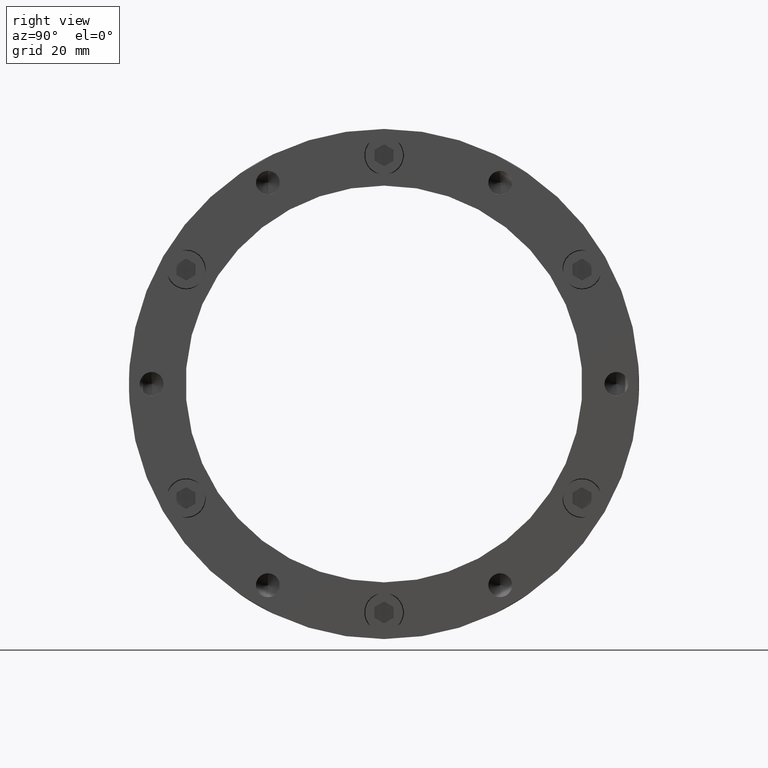
[diagram: clean part render]
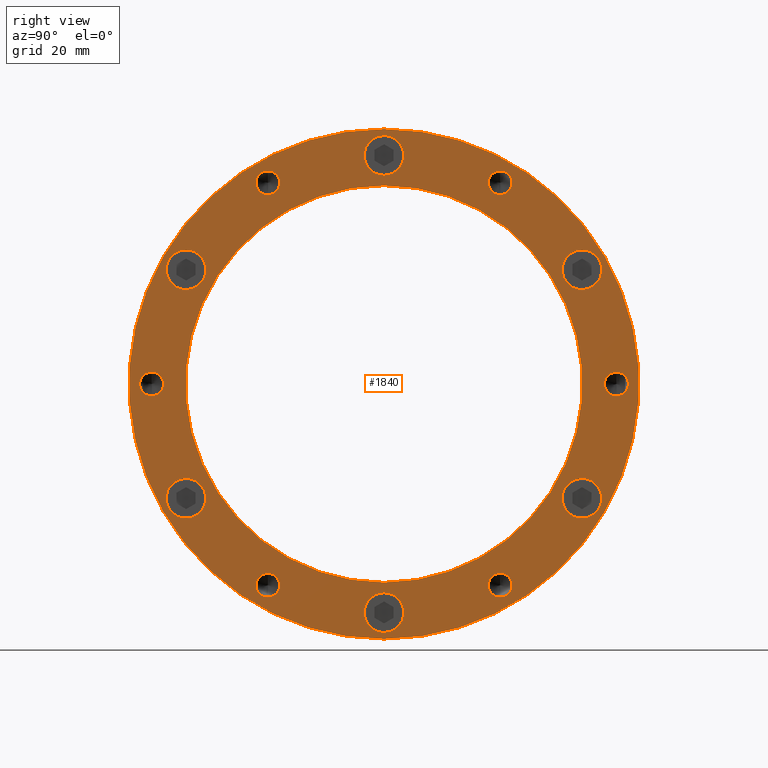
[diagram: same view with one face highlighted and labeled with its STEP entity id]
A machine part, right view. The second image highlights one B-rep face of the part: STEP entity #1840.
In plain terms, the highlighted planar face has unit normal (1, 0, 0).
Its self-contained STEP definition (entity closure, byte-faithful):
#33 = EDGE_LOOP ( 'NONE', ( #2429, #2441 ) ) ;
#34 = EDGE_LOOP ( 'NONE', ( #2354, #2428 ) ) ;
#35 = EDGE_LOOP ( 'NONE', ( #2458, #2459 ) ) ;
#37 = EDGE_LOOP ( 'NONE', ( #2447, #2450 ) ) ;
#38 = EDGE_LOOP ( 'NONE', ( #2381, #2431 ) ) ;
#39 = EDGE_LOOP ( 'NONE', ( #2462, #2463 ) ) ;
#40 = EDGE_LOOP ( 'NONE', ( #2464, #2461 ) ) ;
#41 = EDGE_LOOP ( 'NONE', ( #2466, #2465 ) ) ;
#42 = EDGE_LOOP ( 'NONE', ( #2476, #2475 ) ) ;
#43 = EDGE_LOOP ( 'NONE', ( #2474, #2467 ) ) ;
#44 = EDGE_LOOP ( 'NONE', ( #2472, #2471 ) ) ;
#45 = EDGE_LOOP ( 'NONE', ( #2468, #2477 ) ) ;
#48 = EDGE_LOOP ( 'NONE', ( #2470, #2460 ) ) ;
#51 = EDGE_LOOP ( 'NONE', ( #2478, #2469 ) ) ;
#322 = CIRCLE ( 'NONE', #490, 5.250000000000004400 ) ;
#328 = CIRCLE ( 'NONE', #492, 5.250000000000004400 ) ;
#332 = CIRCLE ( 'NONE', #495, 5.250000000000000900 ) ;
#346 = CIRCLE ( 'NONE', #498, 5.250000000000000900 ) ;
#351 = CIRCLE ( 'NONE', #500, 3.149999999999999900 ) ;
#357 = CIRCLE ( 'NONE', #503, 52.50000000000000000 ) ;
#477 = AXIS2_PLACEMENT_3D ( 'NONE', #3973, #3974, #3975 ) ;
#480 = AXIS2_PLACEMENT_3D ( 'NONE', #3957, #3958, #3959 ) ;
#483 = AXIS2_PLACEMENT_3D ( 'NONE', #3938, #3939, #3940 ) ;
#490 = AXIS2_PLACEMENT_3D ( 'NONE', #3906, #3907, #3908 ) ;
#492 = AXIS2_PLACEMENT_3D ( 'NONE', #3896, #3897, #3898 ) ;
#495 = AXIS2_PLACEMENT_3D ( 'NONE', #3882, #3883, #3884 ) ;
#498 = AXIS2_PLACEMENT_3D ( 'NONE', #3865, #3866, #3867 ) ;
#500 = AXIS2_PLACEMENT_3D ( 'NONE', #731, #3856, #3857 ) ;
#503 = AXIS2_PLACEMENT_3D ( 'NONE', #3842, #3843, #3844 ) ;
#508 = AXIS2_PLACEMENT_3D ( 'NONE', #3816, #3817, #3818 ) ;
#573 = EDGE_CURVE ( 'NONE', #1987, #1988, #1234, .T. ) ;
#579 = EDGE_CURVE ( 'NONE', #1979, #1980, #1230, .T. ) ;
#581 = EDGE_CURVE ( 'NONE', #1983, #1984, #1229, .T. ) ;
#590 = EDGE_CURVE ( 'NONE', #2002, #2003, #1224, .T. ) ;
#592 = EDGE_CURVE ( 'NONE', #1999, #2000, #1223, .T. ) ;
#593 = EDGE_CURVE ( 'NONE', #1995, #1996, #1222, .T. ) ;
#597 = EDGE_CURVE ( 'NONE', #1991, #1992, #1220, .T. ) ;
#614 = EDGE_CURVE ( 'NONE', #1975, #1976, #1206, .T. ) ;
#615 = EDGE_CURVE ( 'NONE', #1971, #1972, #1205, .T. ) ;
#616 = EDGE_CURVE ( 'NONE', #1964, #1963, #1204, .T. ) ;
#650 = EDGE_CURVE ( 'NONE', #1967, #1968, #1132, .T. ) ;
#651 = EDGE_CURVE ( 'NONE', #1963, #1964, #1140, .T. ) ;
#652 = EDGE_CURVE ( 'NONE', #2529, #2513, #1124, .T. ) ;
#653 = EDGE_CURVE ( 'NONE', #2522, #2521, #1128, .T. ) ;
#654 = EDGE_CURVE ( 'NONE', #2502, #2511, #1122, .T. ) ;
#664 = EDGE_CURVE ( 'NONE', #2513, #2529, #1096, .T. ) ;
#668 = EDGE_CURVE ( 'NONE', #2521, #2522, #1072, .T. ) ;
#673 = EDGE_CURVE ( 'NONE', #2511, #2502, #1049, .T. ) ;
#731 = CARTESIAN_POINT ( 'NONE',  ( 31.99999999999998600, -30.75000000000004600, 53.26056233274294300 ) ) ;
#804 = AXIS2_PLACEMENT_3D ( 'NONE', #2767, #2764, #2770 ) ;
#1049 = CIRCLE ( 'NONE', #2727, 3.149999999999999900 ) ;
#1072 = CIRCLE ( 'NONE', #2729, 3.149999999999999900 ) ;
#1096 = CIRCLE ( 'NONE', #2731, 3.149999999999999900 ) ;
#1122 = CIRCLE ( 'NONE', #2739, 3.149999999999999900 ) ;
#1124 = CIRCLE ( 'NONE', #2741, 3.149999999999999900 ) ;
#1128 = CIRCLE ( 'NONE', #2740, 3.149999999999999900 ) ;
#1132 = CIRCLE ( 'NONE', #2743, 3.149999999999999900 ) ;
#1140 = CIRCLE ( 'NONE', #2742, 3.149999999999999900 ) ;
#1204 = CIRCLE ( 'NONE', #4318, 3.149999999999999900 ) ;
#1205 = CIRCLE ( 'NONE', #4319, 3.149999999999999900 ) ;
#1206 = CIRCLE ( 'NONE', #4320, 5.250000000000000900 ) ;
#1220 = CIRCLE ( 'NONE', #4328, 5.250000000000000900 ) ;
#1222 = CIRCLE ( 'NONE', #4330, 5.249999999999997300 ) ;
#1223 = CIRCLE ( 'NONE', #4331, 52.50000000000000000 ) ;
#1224 = CIRCLE ( 'NONE', #4332, 67.50000000000000000 ) ;
#1229 = CIRCLE ( 'NONE', #4337, 5.250000000000004400 ) ;
#1230 = CIRCLE ( 'NONE', #4338, 5.250000000000000900 ) ;
#1234 = CIRCLE ( 'NONE', #4341, 5.250000000000004400 ) ;
#1362 = CARTESIAN_POINT ( 'NONE',  ( 31.99999999999998600, -52.39453692895857300, -30.25000000000000000 ) ) ;
#1363 = DIRECTION ( 'NONE',  ( -1.000000000000000000, -0.0000000000000000000, -0.0000000000000000000 ) ) ;
#1364 = DIRECTION ( 'NONE',  ( 0.0000000000000000000, 0.0000000000000000000, -1.000000000000000000 ) ) ;
#1371 = CARTESIAN_POINT ( 'NONE',  ( 31.99999999999998600, 52.39453692895854400, -30.25000000000004300 ) ) ;
#1372 = DIRECTION ( 'NONE',  ( -1.000000000000000000, -0.0000000000000000000, -0.0000000000000000000 ) ) ;
#1373 = DIRECTION ( 'NONE',  ( 0.0000000000000000000, 0.0000000000000000000, -1.000000000000000000 ) ) ;
#1374 = CARTESIAN_POINT ( 'NONE',  ( 31.99999999999998600, -8.881783999999999800E-015, -60.50000000000004300 ) ) ;
#1375 = DIRECTION ( 'NONE',  ( -1.000000000000000000, -0.0000000000000000000, -0.0000000000000000000 ) ) ;
#1376 = DIRECTION ( 'NONE',  ( 0.0000000000000000000, 0.0000000000000000000, -1.000000000000000000 ) ) ;
#1389 = CARTESIAN_POINT ( 'NONE',  ( 31.99999999999998600, 0.0000000000000000000, 0.0000000000000000000 ) ) ;
#1390 = DIRECTION ( 'NONE',  ( -1.000000000000000000, -0.0000000000000000000, -0.0000000000000000000 ) ) ;
#1391 = DIRECTION ( 'NONE',  ( 0.0000000000000000000, 0.0000000000000000000, -1.000000000000000000 ) ) ;
#1392 = CARTESIAN_POINT ( 'NONE',  ( 31.99999999999998600, 0.0000000000000000000, 0.0000000000000000000 ) ) ;
#1393 = DIRECTION ( 'NONE',  ( -1.000000000000000000, -0.0000000000000000000, -0.0000000000000000000 ) ) ;
#1394 = DIRECTION ( 'NONE',  ( 0.0000000000000000000, 0.0000000000000000000, -1.000000000000000000 ) ) ;
#1395 = CARTESIAN_POINT ( 'NONE',  ( 31.99999999999998600, 0.0000000000000000000, 60.50000000000003600 ) ) ;
#1396 = DIRECTION ( 'NONE',  ( -1.000000000000000000, -0.0000000000000000000, -0.0000000000000000000 ) ) ;
#1397 = DIRECTION ( 'NONE',  ( 0.0000000000000000000, 0.0000000000000000000, -1.000000000000000000 ) ) ;
#1401 = CARTESIAN_POINT ( 'NONE',  ( 31.99999999999998600, -52.39453692895855900, 30.25000000000002500 ) ) ;
#1402 = DIRECTION ( 'NONE',  ( -1.000000000000000000, -0.0000000000000000000, -0.0000000000000000000 ) ) ;
#1403 = DIRECTION ( 'NONE',  ( 0.0000000000000000000, 0.0000000000000000000, -1.000000000000000000 ) ) ;
#1431 = CARTESIAN_POINT ( 'NONE',  ( 31.99999999999998600, 52.39453692895858700, 30.24999999999997900 ) ) ;
#1432 = DIRECTION ( 'NONE',  ( -1.000000000000000000, -0.0000000000000000000, -0.0000000000000000000 ) ) ;
#1433 = DIRECTION ( 'NONE',  ( 0.0000000000000000000, 0.0000000000000000000, -1.000000000000000000 ) ) ;
#1434 = CARTESIAN_POINT ( 'NONE',  ( 31.99999999999998600, -30.75000000000004600, 53.26056233274294300 ) ) ;
#1435 = DIRECTION ( 'NONE',  ( -1.000000000000000000, -0.0000000000000000000, -0.0000000000000000000 ) ) ;
#1436 = DIRECTION ( 'NONE',  ( 0.0000000000000000000, 0.0000000000000000000, -1.000000000000000000 ) ) ;
#1437 = CARTESIAN_POINT ( 'NONE',  ( 31.99999999999998600, -30.74999999999996400, -53.26056233274300000 ) ) ;
#1438 = DIRECTION ( 'NONE',  ( -1.000000000000000000, -0.0000000000000000000, -0.0000000000000000000 ) ) ;
#1439 = DIRECTION ( 'NONE',  ( 0.0000000000000000000, 0.0000000000000000000, -1.000000000000000000 ) ) ;
#1523 = CARTESIAN_POINT ( 'NONE',  ( 31.99999999999998600, -61.49999999999999300, -4.440892000000000200E-014 ) ) ;
#1524 = DIRECTION ( 'NONE',  ( -1.000000000000000000, -0.0000000000000000000, -0.0000000000000000000 ) ) ;
#1525 = DIRECTION ( 'NONE',  ( 0.0000000000000000000, 0.0000000000000000000, -1.000000000000000000 ) ) ;
#1527 = CARTESIAN_POINT ( 'NONE',  ( 31.99999999999998600, -30.74999999999996400, -53.26056233274300000 ) ) ;
#1528 = DIRECTION ( 'NONE',  ( -1.000000000000000000, -0.0000000000000000000, -0.0000000000000000000 ) ) ;
#1529 = DIRECTION ( 'NONE',  ( 0.0000000000000000000, 0.0000000000000000000, -1.000000000000000000 ) ) ;
#1530 = CARTESIAN_POINT ( 'NONE',  ( 31.99999999999998600, 30.75000000000003900, -53.26056233274294300 ) ) ;
#1531 = DIRECTION ( 'NONE',  ( -1.000000000000000000, -0.0000000000000000000, -0.0000000000000000000 ) ) ;
#1532 = DIRECTION ( 'NONE',  ( 0.0000000000000000000, 0.0000000000000000000, -1.000000000000000000 ) ) ;
#1533 = CARTESIAN_POINT ( 'NONE',  ( 31.99999999999998600, 61.49999999999999300, 2.220446000000000100E-014 ) ) ;
#1534 = DIRECTION ( 'NONE',  ( -1.000000000000000000, -0.0000000000000000000, -0.0000000000000000000 ) ) ;
#1535 = DIRECTION ( 'NONE',  ( 0.0000000000000000000, 0.0000000000000000000, -1.000000000000000000 ) ) ;
#1536 = CARTESIAN_POINT ( 'NONE',  ( 31.99999999999998600, 30.74999999999999600, 53.26056233274297800 ) ) ;
#1537 = DIRECTION ( 'NONE',  ( -1.000000000000000000, -0.0000000000000000000, -0.0000000000000000000 ) ) ;
#1538 = DIRECTION ( 'NONE',  ( 0.0000000000000000000, 0.0000000000000000000, -1.000000000000000000 ) ) ;
#1566 = CARTESIAN_POINT ( 'NONE',  ( 31.99999999999998600, 30.75000000000003900, -53.26056233274294300 ) ) ;
#1567 = DIRECTION ( 'NONE',  ( -1.000000000000000000, -0.0000000000000000000, -0.0000000000000000000 ) ) ;
#1568 = DIRECTION ( 'NONE',  ( 0.0000000000000000000, 0.0000000000000000000, -1.000000000000000000 ) ) ;
#1576 = CARTESIAN_POINT ( 'NONE',  ( 31.99999999999998600, 61.49999999999999300, 2.220446000000000100E-014 ) ) ;
#1577 = DIRECTION ( 'NONE',  ( -1.000000000000000000, -0.0000000000000000000, -0.0000000000000000000 ) ) ;
#1578 = DIRECTION ( 'NONE',  ( 0.0000000000000000000, 0.0000000000000000000, -1.000000000000000000 ) ) ;
#1589 = CARTESIAN_POINT ( 'NONE',  ( 31.99999999999998600, 30.74999999999999600, 53.26056233274297800 ) ) ;
#1590 = DIRECTION ( 'NONE',  ( -1.000000000000000000, -0.0000000000000000000, -0.0000000000000000000 ) ) ;
#1591 = DIRECTION ( 'NONE',  ( 0.0000000000000000000, 0.0000000000000000000, -1.000000000000000000 ) ) ;
#1840 = ADVANCED_FACE ( 'NONE', ( #4436, #4430, #4434, #4431, #4428, #4432, #4426, #4425, #4424, #4423, #4422, #4421, #4420, #4419 ), #2769, .T. ) ;
#1963 = VERTEX_POINT ( 'NONE', #3135 ) ;
#1964 = VERTEX_POINT ( 'NONE', #3136 ) ;
#1967 = VERTEX_POINT ( 'NONE', #3139 ) ;
#1968 = VERTEX_POINT ( 'NONE', #3131 ) ;
#1971 = VERTEX_POINT ( 'NONE', #3141 ) ;
#1972 = VERTEX_POINT ( 'NONE', #3142 ) ;
#1975 = VERTEX_POINT ( 'NONE', #3145 ) ;
#1976 = VERTEX_POINT ( 'NONE', #3146 ) ;
#1979 = VERTEX_POINT ( 'NONE', #3149 ) ;
#1980 = VERTEX_POINT ( 'NONE', #3150 ) ;
#1983 = VERTEX_POINT ( 'NONE', #3153 ) ;
#1984 = VERTEX_POINT ( 'NONE', #3154 ) ;
#1987 = VERTEX_POINT ( 'NONE', #3157 ) ;
#1988 = VERTEX_POINT ( 'NONE', #3158 ) ;
#1991 = VERTEX_POINT ( 'NONE', #3161 ) ;
#1992 = VERTEX_POINT ( 'NONE', #3162 ) ;
#1995 = VERTEX_POINT ( 'NONE', #3165 ) ;
#1996 = VERTEX_POINT ( 'NONE', #3166 ) ;
#1999 = VERTEX_POINT ( 'NONE', #3169 ) ;
#2000 = VERTEX_POINT ( 'NONE', #3170 ) ;
#2002 = VERTEX_POINT ( 'NONE', #3172 ) ;
#2003 = VERTEX_POINT ( 'NONE', #3173 ) ;
#2234 = CIRCLE ( 'NONE', #508, 3.149999999999999900 ) ;
#2354 = ORIENTED_EDGE ( 'NONE', *, *, #673, .T. ) ;
#2381 = ORIENTED_EDGE ( 'NONE', *, *, #616, .T. ) ;
#2428 = ORIENTED_EDGE ( 'NONE', *, *, #654, .T. ) ;
#2429 = ORIENTED_EDGE ( 'NONE', *, *, #590, .F. ) ;
#2431 = ORIENTED_EDGE ( 'NONE', *, *, #651, .T. ) ;
#2441 = ORIENTED_EDGE ( 'NONE', *, *, #4600, .F. ) ;
#2447 = ORIENTED_EDGE ( 'NONE', *, *, #664, .T. ) ;
#2450 = ORIENTED_EDGE ( 'NONE', *, *, #652, .T. ) ;
#2458 = ORIENTED_EDGE ( 'NONE', *, *, #668, .T. ) ;
#2459 = ORIENTED_EDGE ( 'NONE', *, *, #653, .T. ) ;
#2460 = ORIENTED_EDGE ( 'NONE', *, *, #579, .T. ) ;
#2461 = ORIENTED_EDGE ( 'NONE', *, *, #615, .T. ) ;
#2462 = ORIENTED_EDGE ( 'NONE', *, *, #4549, .T. ) ;
#2463 = ORIENTED_EDGE ( 'NONE', *, *, #650, .T. ) ;
#2464 = ORIENTED_EDGE ( 'NONE', *, *, #4566, .T. ) ;
#2465 = ORIENTED_EDGE ( 'NONE', *, *, #614, .T. ) ;
#2466 = ORIENTED_EDGE ( 'NONE', *, *, #4570, .T. ) ;
#2467 = ORIENTED_EDGE ( 'NONE', *, *, #573, .T. ) ;
#2468 = ORIENTED_EDGE ( 'NONE', *, *, #4608, .T. ) ;
#2469 = ORIENTED_EDGE ( 'NONE', *, *, #592, .T. ) ;
#2470 = ORIENTED_EDGE ( 'NONE', *, *, #4577, .T. ) ;
#2471 = ORIENTED_EDGE ( 'NONE', *, *, #581, .T. ) ;
#2472 = ORIENTED_EDGE ( 'NONE', *, *, #4582, .T. ) ;
#2474 = ORIENTED_EDGE ( 'NONE', *, *, #4586, .T. ) ;
#2475 = ORIENTED_EDGE ( 'NONE', *, *, #597, .T. ) ;
#2476 = ORIENTED_EDGE ( 'NONE', *, *, #4613, .T. ) ;
#2477 = ORIENTED_EDGE ( 'NONE', *, *, #593, .T. ) ;
#2478 = ORIENTED_EDGE ( 'NONE', *, *, #4560, .T. ) ;
#2502 = VERTEX_POINT ( 'NONE', #3315 ) ;
#2511 = VERTEX_POINT ( 'NONE', #3316 ) ;
#2513 = VERTEX_POINT ( 'NONE', #3325 ) ;
#2521 = VERTEX_POINT ( 'NONE', #3327 ) ;
#2522 = VERTEX_POINT ( 'NONE', #3329 ) ;
#2529 = VERTEX_POINT ( 'NONE', #3330 ) ;
#2727 = AXIS2_PLACEMENT_3D ( 'NONE', #1589, #1590, #1591 ) ;
#2729 = AXIS2_PLACEMENT_3D ( 'NONE', #1576, #1577, #1578 ) ;
#2731 = AXIS2_PLACEMENT_3D ( 'NONE', #1566, #1567, #1568 ) ;
#2739 = AXIS2_PLACEMENT_3D ( 'NONE', #1536, #1537, #1538 ) ;
#2740 = AXIS2_PLACEMENT_3D ( 'NONE', #1533, #1534, #1535 ) ;
#2741 = AXIS2_PLACEMENT_3D ( 'NONE', #1530, #1531, #1532 ) ;
#2742 = AXIS2_PLACEMENT_3D ( 'NONE', #1527, #1528, #1529 ) ;
#2743 = AXIS2_PLACEMENT_3D ( 'NONE', #1523, #1524, #1525 ) ;
#2764 = DIRECTION ( 'NONE',  ( 1.000000000000000000, -0.0000000000000000000, 0.0000000000000000000 ) ) ;
#2767 = CARTESIAN_POINT ( 'NONE',  ( 31.99999999999998600, 60.00000000000000000, 0.0000000000000000000 ) ) ;
#2769 = PLANE ( 'NONE',  #804 ) ;
#2770 = DIRECTION ( 'NONE',  ( 0.0000000000000000000, 0.0000000000000000000, -1.000000000000000000 ) ) ;
#3131 = CARTESIAN_POINT ( 'NONE',  ( 31.99999999999998600, -61.49999999999999300, -3.150000000000044300 ) ) ;
#3135 = CARTESIAN_POINT ( 'NONE',  ( 31.99999999999998600, -30.74999999999996400, -50.11056233274299400 ) ) ;
#3136 = CARTESIAN_POINT ( 'NONE',  ( 31.99999999999998600, -30.74999999999996400, -56.41056233274299800 ) ) ;
#3139 = CARTESIAN_POINT ( 'NONE',  ( 31.99999999999998600, -61.49999999999999300, 3.149999999999955900 ) ) ;
#3141 = CARTESIAN_POINT ( 'NONE',  ( 31.99999999999998600, -30.75000000000004600, 56.41056233274294100 ) ) ;
#3142 = CARTESIAN_POINT ( 'NONE',  ( 31.99999999999998600, -30.75000000000004600, 50.11056233274294400 ) ) ;
#3145 = CARTESIAN_POINT ( 'NONE',  ( 31.99999999999998600, 52.39453692895858700, 35.49999999999997900 ) ) ;
#3146 = CARTESIAN_POINT ( 'NONE',  ( 31.99999999999998600, 52.39453692895858700, 24.99999999999997900 ) ) ;
#3149 = CARTESIAN_POINT ( 'NONE',  ( 31.99999999999998600, 52.39453692895854400, -25.00000000000004300 ) ) ;
#3150 = CARTESIAN_POINT ( 'NONE',  ( 31.99999999999998600, 52.39453692895854400, -35.50000000000004300 ) ) ;
#3153 = CARTESIAN_POINT ( 'NONE',  ( 31.99999999999998600, -8.238844430447640300E-015, -55.25000000000004300 ) ) ;
#3154 = CARTESIAN_POINT ( 'NONE',  ( 31.99999999999998600, -8.881783999999999800E-015, -65.75000000000004300 ) ) ;
#3157 = CARTESIAN_POINT ( 'NONE',  ( 31.99999999999998600, -52.39453692895857300, -24.99999999999999600 ) ) ;
#3158 = CARTESIAN_POINT ( 'NONE',  ( 31.99999999999998600, -52.39453692895857300, -35.50000000000000700 ) ) ;
#3161 = CARTESIAN_POINT ( 'NONE',  ( 31.99999999999998600, -52.39453692895855900, 35.50000000000002100 ) ) ;
#3162 = CARTESIAN_POINT ( 'NONE',  ( 31.99999999999998600, -52.39453692895855900, 25.00000000000002100 ) ) ;
#3165 = CARTESIAN_POINT ( 'NONE',  ( 31.99999999999998600, 6.429395695523607100E-016, 65.75000000000002800 ) ) ;
#3166 = CARTESIAN_POINT ( 'NONE',  ( 31.99999999999998600, 0.0000000000000000000, 55.25000000000003600 ) ) ;
#3169 = CARTESIAN_POINT ( 'NONE',  ( 31.99999999999998600, 6.429395695523604000E-015, 52.50000000000000000 ) ) ;
#3170 = CARTESIAN_POINT ( 'NONE',  ( 31.99999999999998600, 0.0000000000000000000, -52.50000000000000000 ) ) ;
#3172 = CARTESIAN_POINT ( 'NONE',  ( 31.99999999999998600, 0.0000000000000000000, -67.50000000000000000 ) ) ;
#3173 = CARTESIAN_POINT ( 'NONE',  ( 31.99999999999998600, 8.266365894244635100E-015, 67.50000000000000000 ) ) ;
#3315 = CARTESIAN_POINT ( 'NONE',  ( 31.99999999999998600, 30.74999999999999600, 56.41056233274297700 ) ) ;
#3316 = CARTESIAN_POINT ( 'NONE',  ( 31.99999999999998600, 30.74999999999999600, 50.11056233274298000 ) ) ;
#3325 = CARTESIAN_POINT ( 'NONE',  ( 31.99999999999998600, 30.75000000000003900, -56.41056233274294100 ) ) ;
#3327 = CARTESIAN_POINT ( 'NONE',  ( 31.99999999999998600, 61.49999999999999300, -3.149999999999977700 ) ) ;
#3329 = CARTESIAN_POINT ( 'NONE',  ( 31.99999999999998600, 61.49999999999999300, 3.150000000000022100 ) ) ;
#3330 = CARTESIAN_POINT ( 'NONE',  ( 31.99999999999998600, 30.75000000000003900, -50.11056233274294400 ) ) ;
#3816 = CARTESIAN_POINT ( 'NONE',  ( 31.99999999999998600, -61.49999999999999300, -4.440892000000000200E-014 ) ) ;
#3817 = DIRECTION ( 'NONE',  ( -1.000000000000000000, -0.0000000000000000000, -0.0000000000000000000 ) ) ;
#3818 = DIRECTION ( 'NONE',  ( 0.0000000000000000000, 0.0000000000000000000, -1.000000000000000000 ) ) ;
#3842 = CARTESIAN_POINT ( 'NONE',  ( 31.99999999999998600, 0.0000000000000000000, 0.0000000000000000000 ) ) ;
#3843 = DIRECTION ( 'NONE',  ( -1.000000000000000000, -0.0000000000000000000, -0.0000000000000000000 ) ) ;
#3844 = DIRECTION ( 'NONE',  ( 0.0000000000000000000, 0.0000000000000000000, -1.000000000000000000 ) ) ;
#3856 = DIRECTION ( 'NONE',  ( -1.000000000000000000, -0.0000000000000000000, -0.0000000000000000000 ) ) ;
#3857 = DIRECTION ( 'NONE',  ( 0.0000000000000000000, 0.0000000000000000000, -1.000000000000000000 ) ) ;
#3865 = CARTESIAN_POINT ( 'NONE',  ( 31.99999999999998600, 52.39453692895858700, 30.24999999999997900 ) ) ;
#3866 = DIRECTION ( 'NONE',  ( -1.000000000000000000, -0.0000000000000000000, -0.0000000000000000000 ) ) ;
#3867 = DIRECTION ( 'NONE',  ( 0.0000000000000000000, 0.0000000000000000000, -1.000000000000000000 ) ) ;
#3882 = CARTESIAN_POINT ( 'NONE',  ( 31.99999999999998600, 52.39453692895854400, -30.25000000000004300 ) ) ;
#3883 = DIRECTION ( 'NONE',  ( -1.000000000000000000, -0.0000000000000000000, -0.0000000000000000000 ) ) ;
#3884 = DIRECTION ( 'NONE',  ( 0.0000000000000000000, 0.0000000000000000000, -1.000000000000000000 ) ) ;
#3896 = CARTESIAN_POINT ( 'NONE',  ( 31.99999999999998600, -8.881783999999999800E-015, -60.50000000000004300 ) ) ;
#3897 = DIRECTION ( 'NONE',  ( -1.000000000000000000, -0.0000000000000000000, -0.0000000000000000000 ) ) ;
#3898 = DIRECTION ( 'NONE',  ( 0.0000000000000000000, 0.0000000000000000000, -1.000000000000000000 ) ) ;
#3906 = CARTESIAN_POINT ( 'NONE',  ( 31.99999999999998600, -52.39453692895857300, -30.25000000000000000 ) ) ;
#3907 = DIRECTION ( 'NONE',  ( -1.000000000000000000, -0.0000000000000000000, -0.0000000000000000000 ) ) ;
#3908 = DIRECTION ( 'NONE',  ( 0.0000000000000000000, 0.0000000000000000000, -1.000000000000000000 ) ) ;
#3938 = CARTESIAN_POINT ( 'NONE',  ( 31.99999999999998600, 0.0000000000000000000, 0.0000000000000000000 ) ) ;
#3939 = DIRECTION ( 'NONE',  ( -1.000000000000000000, -0.0000000000000000000, -0.0000000000000000000 ) ) ;
#3940 = DIRECTION ( 'NONE',  ( 0.0000000000000000000, 0.0000000000000000000, -1.000000000000000000 ) ) ;
#3957 = CARTESIAN_POINT ( 'NONE',  ( 31.99999999999998600, 0.0000000000000000000, 60.50000000000003600 ) ) ;
#3958 = DIRECTION ( 'NONE',  ( -1.000000000000000000, -0.0000000000000000000, -0.0000000000000000000 ) ) ;
#3959 = DIRECTION ( 'NONE',  ( 0.0000000000000000000, 0.0000000000000000000, -1.000000000000000000 ) ) ;
#3973 = CARTESIAN_POINT ( 'NONE',  ( 31.99999999999998600, -52.39453692895855900, 30.25000000000002500 ) ) ;
#3974 = DIRECTION ( 'NONE',  ( -1.000000000000000000, -0.0000000000000000000, -0.0000000000000000000 ) ) ;
#3975 = DIRECTION ( 'NONE',  ( 0.0000000000000000000, 0.0000000000000000000, -1.000000000000000000 ) ) ;
#4318 = AXIS2_PLACEMENT_3D ( 'NONE', #1437, #1438, #1439 ) ;
#4319 = AXIS2_PLACEMENT_3D ( 'NONE', #1434, #1435, #1436 ) ;
#4320 = AXIS2_PLACEMENT_3D ( 'NONE', #1431, #1432, #1433 ) ;
#4328 = AXIS2_PLACEMENT_3D ( 'NONE', #1401, #1402, #1403 ) ;
#4330 = AXIS2_PLACEMENT_3D ( 'NONE', #1395, #1396, #1397 ) ;
#4331 = AXIS2_PLACEMENT_3D ( 'NONE', #1392, #1393, #1394 ) ;
#4332 = AXIS2_PLACEMENT_3D ( 'NONE', #1389, #1390, #1391 ) ;
#4337 = AXIS2_PLACEMENT_3D ( 'NONE', #1374, #1375, #1376 ) ;
#4338 = AXIS2_PLACEMENT_3D ( 'NONE', #1371, #1372, #1373 ) ;
#4341 = AXIS2_PLACEMENT_3D ( 'NONE', #1362, #1363, #1364 ) ;
#4419 = FACE_OUTER_BOUND ( 'NONE', #33, .T. ) ;
#4420 = FACE_BOUND ( 'NONE', #34, .T. ) ;
#4421 = FACE_BOUND ( 'NONE', #35, .T. ) ;
#4422 = FACE_BOUND ( 'NONE', #37, .T. ) ;
#4423 = FACE_BOUND ( 'NONE', #38, .T. ) ;
#4424 = FACE_BOUND ( 'NONE', #39, .T. ) ;
#4425 = FACE_BOUND ( 'NONE', #40, .T. ) ;
#4426 = FACE_BOUND ( 'NONE', #41, .T. ) ;
#4428 = FACE_BOUND ( 'NONE', #44, .T. ) ;
#4430 = FACE_BOUND ( 'NONE', #45, .T. ) ;
#4431 = FACE_BOUND ( 'NONE', #43, .T. ) ;
#4432 = FACE_BOUND ( 'NONE', #48, .T. ) ;
#4434 = FACE_BOUND ( 'NONE', #42, .T. ) ;
#4436 = FACE_BOUND ( 'NONE', #51, .T. ) ;
#4549 = EDGE_CURVE ( 'NONE', #1968, #1967, #2234, .T. ) ;
#4560 = EDGE_CURVE ( 'NONE', #2000, #1999, #357, .T. ) ;
#4566 = EDGE_CURVE ( 'NONE', #1972, #1971, #351, .T. ) ;
#4570 = EDGE_CURVE ( 'NONE', #1976, #1975, #346, .T. ) ;
#4577 = EDGE_CURVE ( 'NONE', #1980, #1979, #332, .T. ) ;
#4582 = EDGE_CURVE ( 'NONE', #1984, #1983, #328, .T. ) ;
#4586 = EDGE_CURVE ( 'NONE', #1988, #1987, #322, .T. ) ;
#4600 = EDGE_CURVE ( 'NONE', #2003, #2002, #4732, .T. ) ;
#4608 = EDGE_CURVE ( 'NONE', #1996, #1995, #4720, .T. ) ;
#4613 = EDGE_CURVE ( 'NONE', #1992, #1991, #4718, .T. ) ;
#4718 = CIRCLE ( 'NONE', #477, 5.250000000000000900 ) ;
#4720 = CIRCLE ( 'NONE', #480, 5.249999999999997300 ) ;
#4732 = CIRCLE ( 'NONE', #483, 67.50000000000000000 ) ;